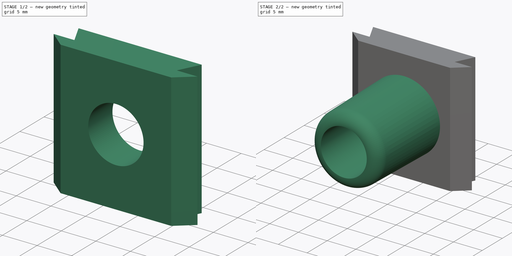
[diagram: build sequence overview — one tinted view per stage of 2, left to right]
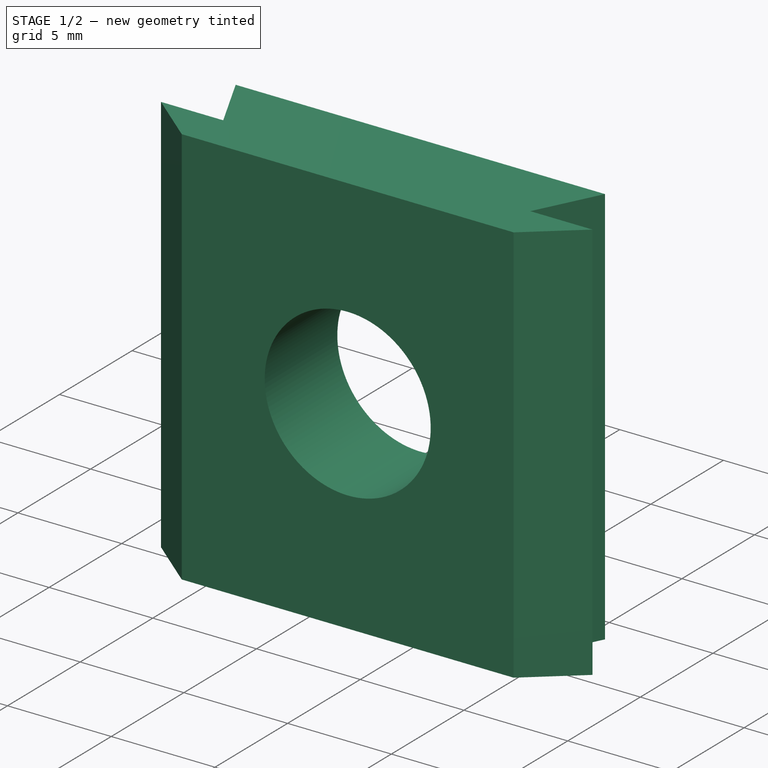
[diagram: stage 1 of 2 — iso view after this stage's code; geometry added in this stage tinted green]
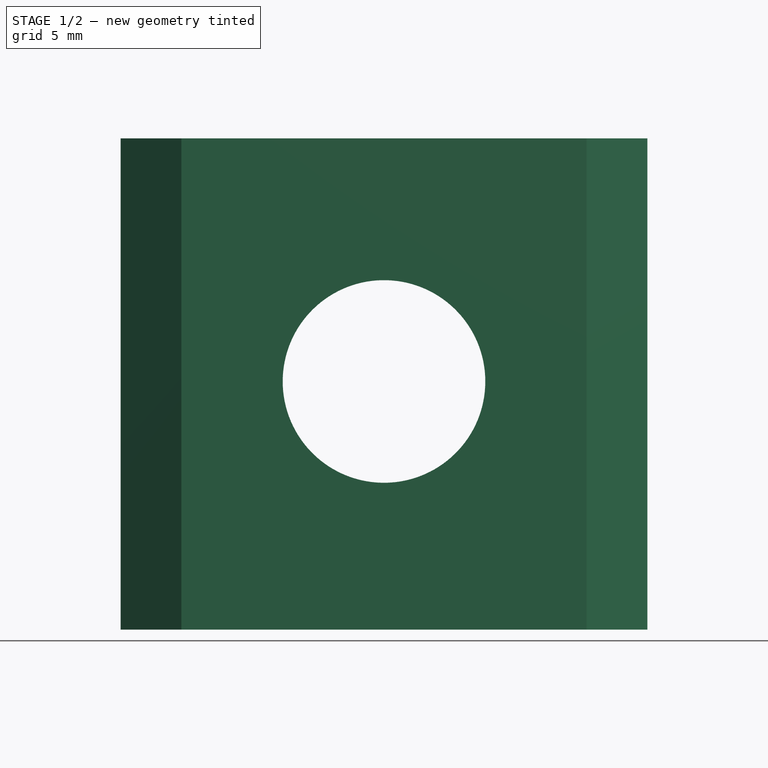
[diagram: stage 1 of 2 — front view after this stage's code; geometry added in this stage tinted green]
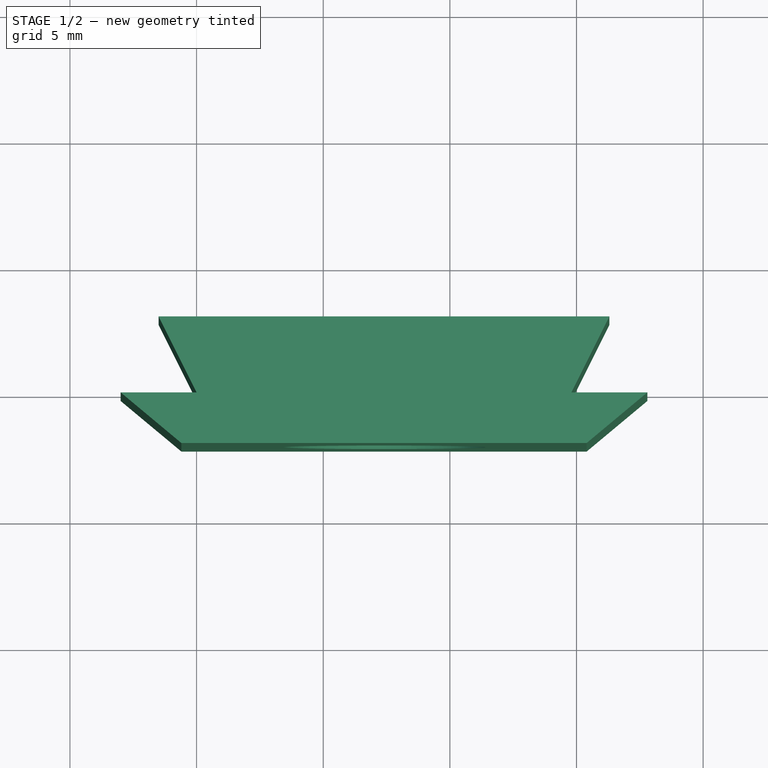
[diagram: stage 1 of 2 — top view after this stage's code; geometry added in this stage tinted green]
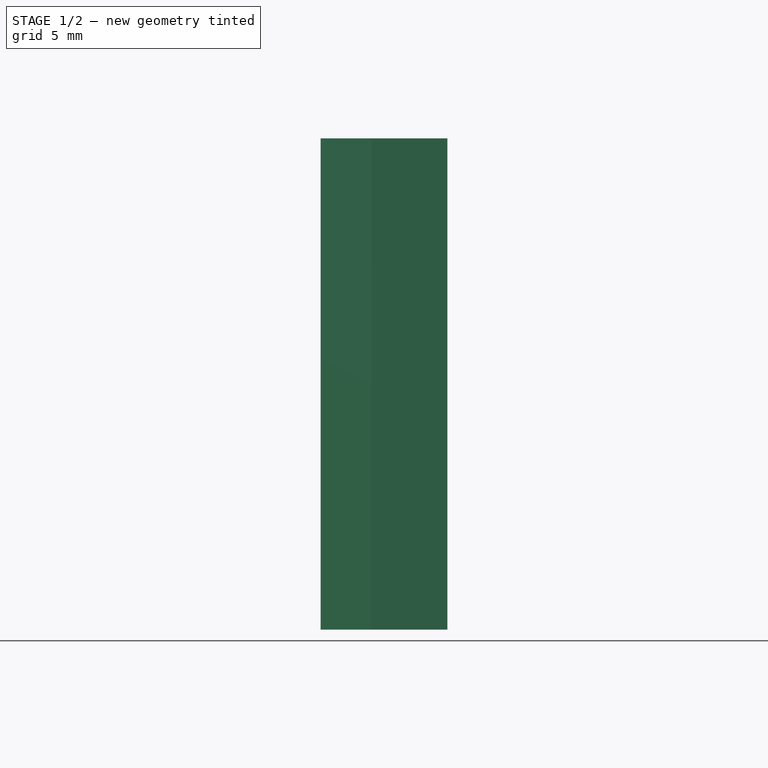
[diagram: stage 1 of 2 — right view after this stage's code; geometry added in this stage tinted green]
FCSTD DOCUMENT  (FreeCAD 0.18R4 (GitTag))
Label: Connector_tube12mm
License: All rights reserved
LicenseURL: http://en.wikipedia.org/wiki/All_rights_reserved
objects: Sketcher::SketchObject×3, PartDesign::ShapeBinder×1, PartDesign::Pad×1, PartDesign::CoordinateSystem×1, PartDesign::Plane×1, PartDesign::Pocket×1, PartDesign::Revolution×1, PartDesign::Fillet×1, PartDesign::Body×1
note: 14 computed .brp shape members not serialized (recipe doc carries the construction recipe); baked Part::Feature solids carry a one-line shape summary decoded from their .brp

FEATURE [PartDesign::ShapeBinder] ReferenceMirrored003
  TraceSupport = false
FEATURE [Sketcher::SketchObject] Sketch019
  MapMode = 5
  Placement = pos=(0,0,20) rot=(0,0,1;0rad)
  Support = -> [ReferenceMirrored003]
  sketch-geometry (8):
    g0: LineSegment StartX=-21.5 StartY=-17.15 StartZ=0 EndX=-3.7 EndY=-17.15 EndZ=0
    g1: LineSegment StartX=-3.7 StartY=-17.15 StartZ=0 EndX=-5.2 EndY=-20.15 EndZ=0
    g2: LineSegment StartX=-5.2 StartY=-20.15 StartZ=0 EndX=-2.2 EndY=-20.15 EndZ=0
    g3: LineSegment StartX=-2.2 StartY=-20.15 StartZ=0 EndX=-4.6 EndY=-22.15 EndZ=0
    g4: LineSegment StartX=-4.6 StartY=-22.15 StartZ=0 EndX=-20.6 EndY=-22.15 EndZ=0
    g5: LineSegment StartX=-20.6 StartY=-22.15 StartZ=0 EndX=-23 EndY=-20.15 EndZ=0
    g6: LineSegment StartX=-23 StartY=-20.15 StartZ=0 EndX=-20 EndY=-20.15 EndZ=0
    g7: LineSegment StartX=-20 StartY=-20.15 StartZ=0 EndX=-21.5 EndY=-17.15 EndZ=0
  constraints (24):
    c: Coincident(g0,g1)
    c: Coincident(g1,g2)
    c: Coincident(g2,g3)
    c: Coincident(g3,g4)
    c: Coincident(g4,g5)
    c: Coincident(g5,g6)
    c: Coincident(g6,g7)
    c: Coincident(g7,g0)
    c: Horizontal(g0)
    c: Horizontal(g2)
    c: Horizontal(g6)
    c: Horizontal(g4)
    c: DistanceX(g0,g0) = 17.8
    c: DistanceX(g6,g1) = 14.8
    c: Equal(g7,g1)
    c: Equal(g6,g2)
    c: DistanceY(g6,g0) = 3
    c: Horizontal(g1,g6)
    c: DistanceX(g6,g6) = 3
    c: DistanceY(g4,g6) = 2
    c: Equal(g5,g3)
    c: DistanceX(g2,g-1) = 2.2
    c: DistanceY(g2) = -20.15
    c: DistanceX(g4,g4) = 16
FEATURE [PartDesign::Pad] Pad003
  Length = 19.4
  Length2 = 100
  Profile = -> Sketch019
  Reversed = true
  Type = 0
FEATURE [PartDesign::CoordinateSystem] Local_CS
  AttacherType = Attacher::AttachEngine3D
  MapMode = 45
  Placement = pos=(-12.6,-22.15,10.3) rot=(-1,0,0;1.5708rad)
  Support = -> [Pad003]
FEATURE [PartDesign::Plane] DatumPlane
  AttachmentOffset = pos=(0,-18,0) rot=(0,0,1;0rad)
  Length = 41.1362
  MapMode = 3
  Placement = pos=(-12.6,-40.15,10.3) rot=(0,0,1;0rad)
  ResizeMode = 0
  Support = -> [Local_CS]
  Width = 58.2862
FEATURE [Sketcher::SketchObject] Sketch020
  ExternalGeometry = -> [Pad003]
  MapMode = 5
  Placement = pos=(0,-22.15,0) rot=(1,0,0;1.5708rad)
  Support = -> [Pad003]
  sketch-geometry (1):
    g0: Circle CenterX=-12.6 CenterY=10.4 CenterZ=0 NormalX=0 NormalY=0 NormalZ=1 AngleXU=0 Radius=4
  constraints (5):
    c: Radius(g0) = 4
    c: DistanceX(g-4,g-3) = 16
    c: DistanceY(g-4,g-4) = 19.4
    c: DistanceX(g-4,g0) = 8
    c: DistanceY(g0,g-4) = 9.6
FEATURE [PartDesign::Pocket] Pocket
  BaseFeature = -> Pad003
  Length = 6
  Length2 = 100
  Profile = -> Sketch020
  Type = 0
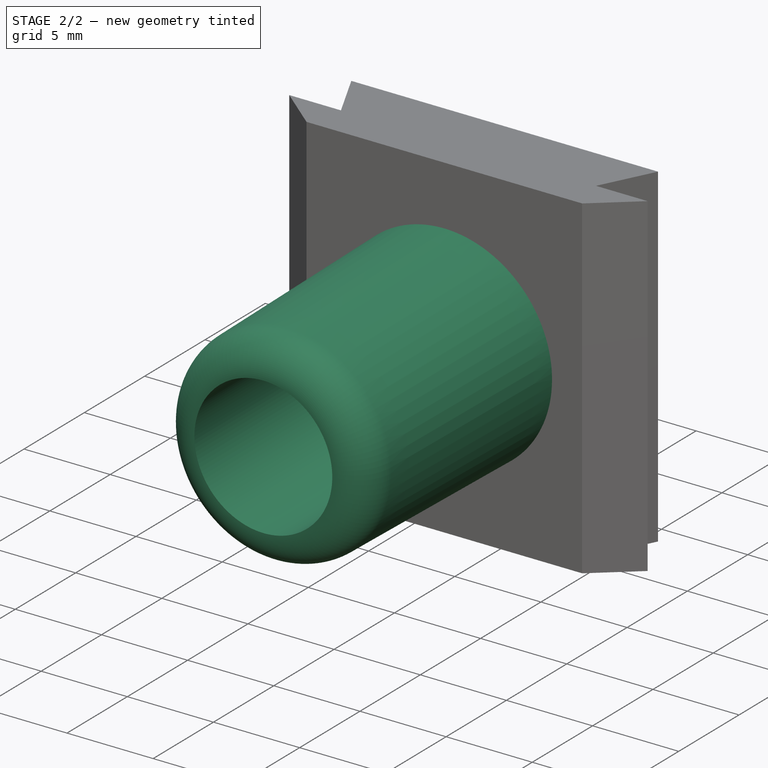
[diagram: stage 2 of 2 — iso view after this stage's code; geometry added in this stage tinted green]
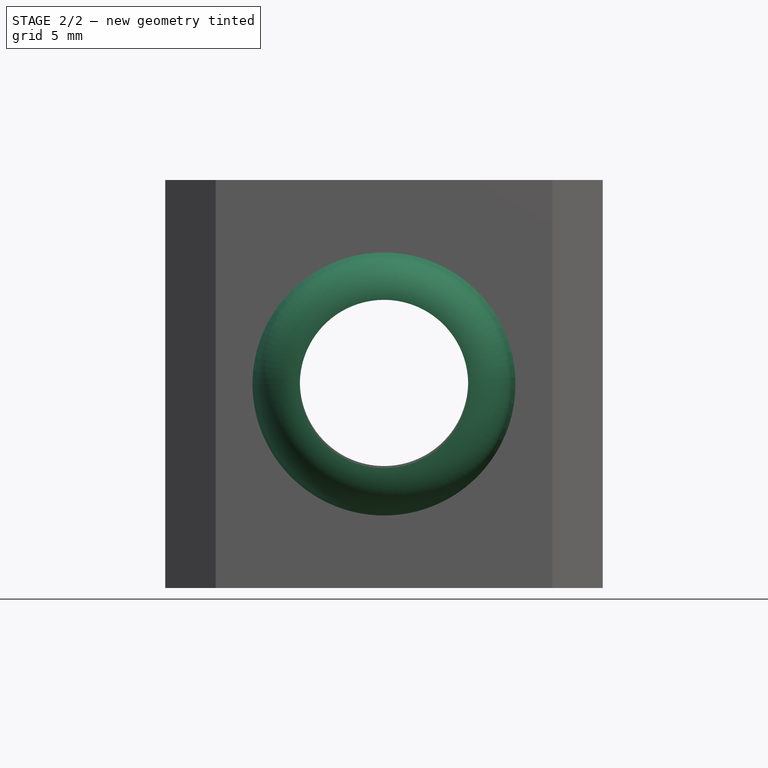
[diagram: stage 2 of 2 — front view after this stage's code; geometry added in this stage tinted green]
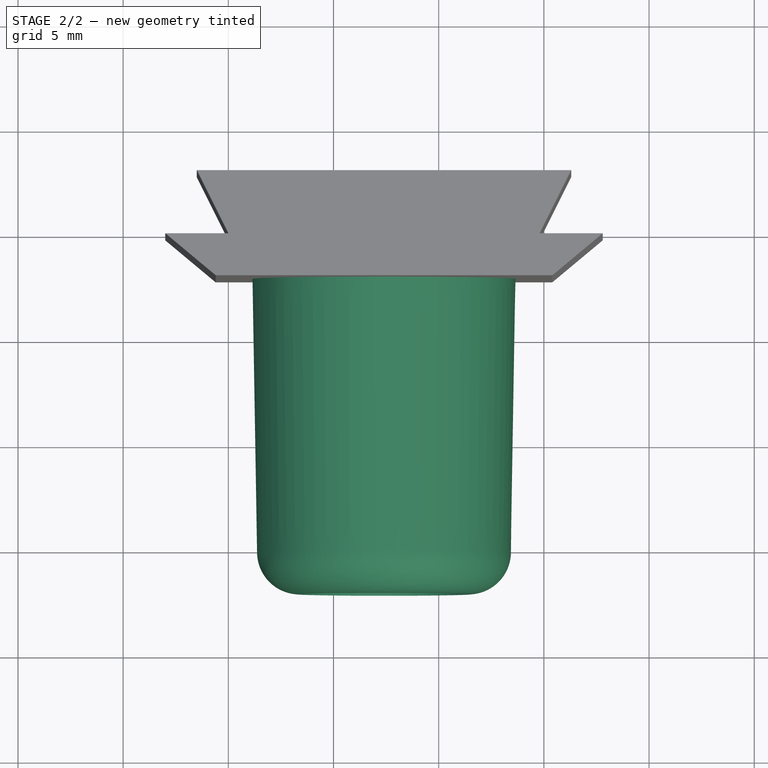
[diagram: stage 2 of 2 — top view after this stage's code; geometry added in this stage tinted green]
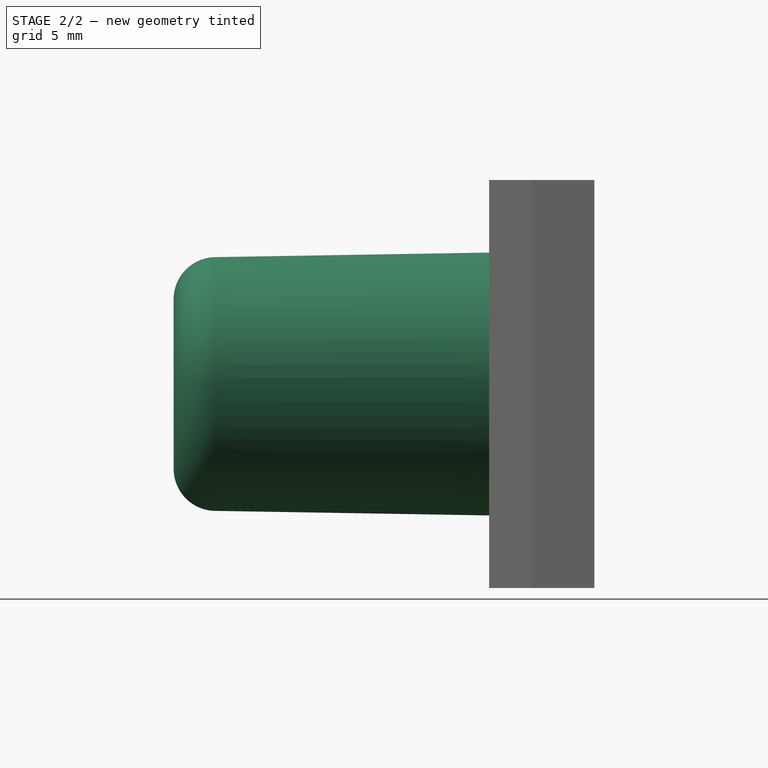
[diagram: stage 2 of 2 — right view after this stage's code; geometry added in this stage tinted green]
FEATURE [Sketcher::SketchObject] Sketch
  ExternalGeometry = -> [Pocket]
  MapMode = 5
  Placement = pos=(-12.6,-40.15,10.3) rot=(0,0,1;0rad)
  Support = -> [DatumPlane]
  sketch-geometry (4):
    g0: LineSegment StartX=-6.25 StartY=18 StartZ=0 EndX=-6 EndY=3 EndZ=0
    g1: LineSegment StartX=-4 StartY=18 StartZ=0 EndX=-4 EndY=3 EndZ=0
    g2: LineSegment StartX=-6.25 StartY=18 StartZ=0 EndX=-4 EndY=18 EndZ=0
    g3: LineSegment StartX=-6 StartY=3 StartZ=0 EndX=-4 EndY=3 EndZ=0
  constraints (11):
    c: Vertical(g1)
    c: Coincident(g2,g0)
    c: Coincident(g1,g2)
    c: DistanceX(g2,g2) = 2.25
    c: DistanceY(g1,g1) = 15
    c: Coincident(g3,g0)
    c: Coincident(g1,g3)
    c: Horizontal(g3)
    c: DistanceX(g3,g3) = 2
    c: Tangent(g-3,g2)
    c: DistanceX(g1,g-1) = 4
FEATURE [PartDesign::Revolution] Revolution
  Angle = 360
  Axis = (0,1,2e-16)
  Base = (-12.6,-40.15,10.3)
  BaseFeature = -> Pocket
  Profile = -> Sketch
  ReferenceAxis = -> Sketch [V_Axis]
FEATURE [PartDesign::Fillet] Fillet
  Base = -> Revolution [Edge34]
  BaseFeature = -> Revolution
  Radius = 2
FEATURE [PartDesign::Body] Body001  label="Connector_Block"
  Group = -> [ReferenceMirrored003,Sketch019,Pad003,Local_CS,DatumPlane,Sketch,Sketch020,Pocket,Revolution,Fillet]
  Origin = -> Origin001
  Tip = -> Fillet
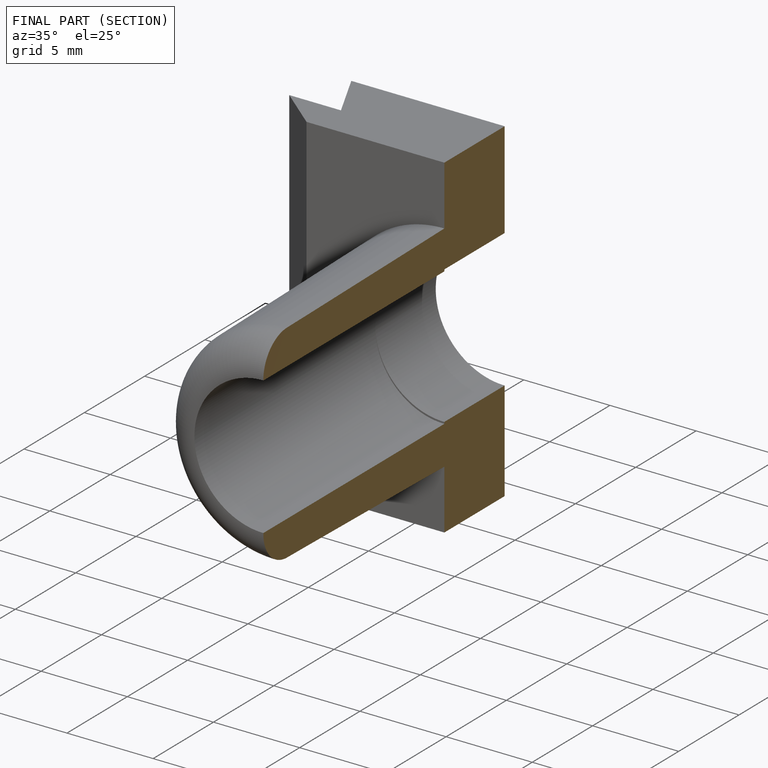
[diagram: finished part — half-section view (interior)]
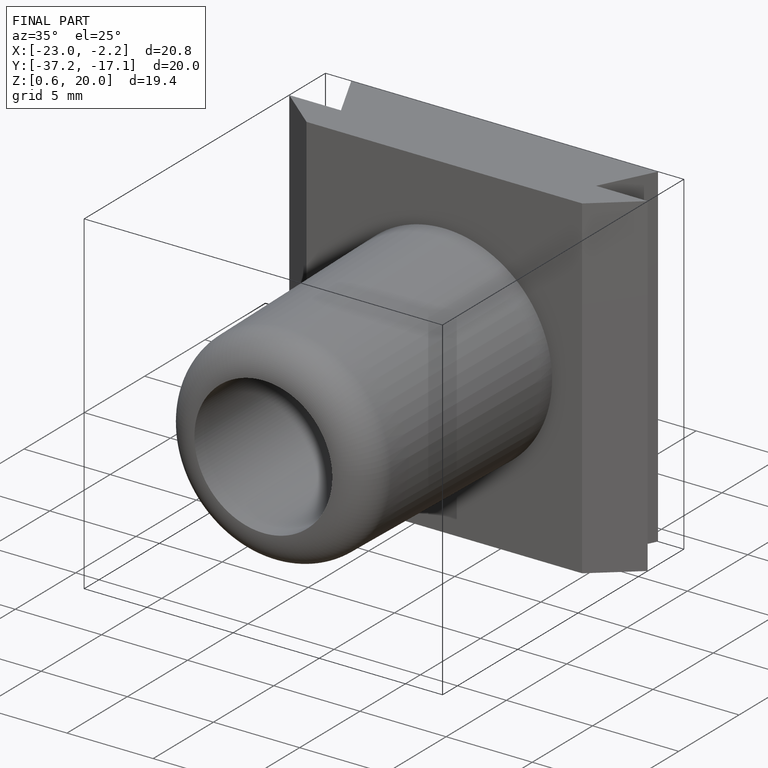
[diagram: finished part — iso view with bounding-box wireframe]
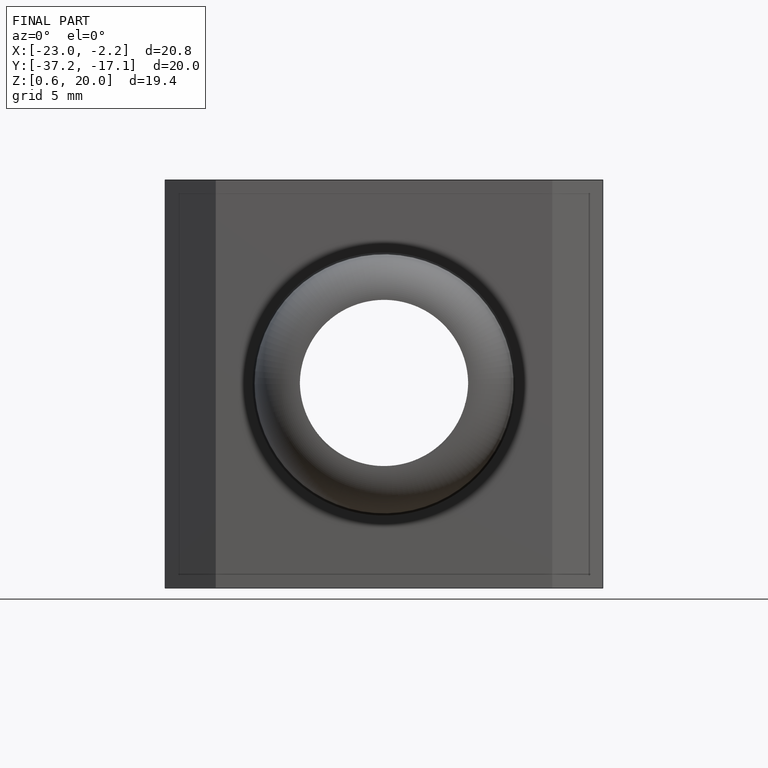
[diagram: finished part — front view with bounding-box wireframe]
